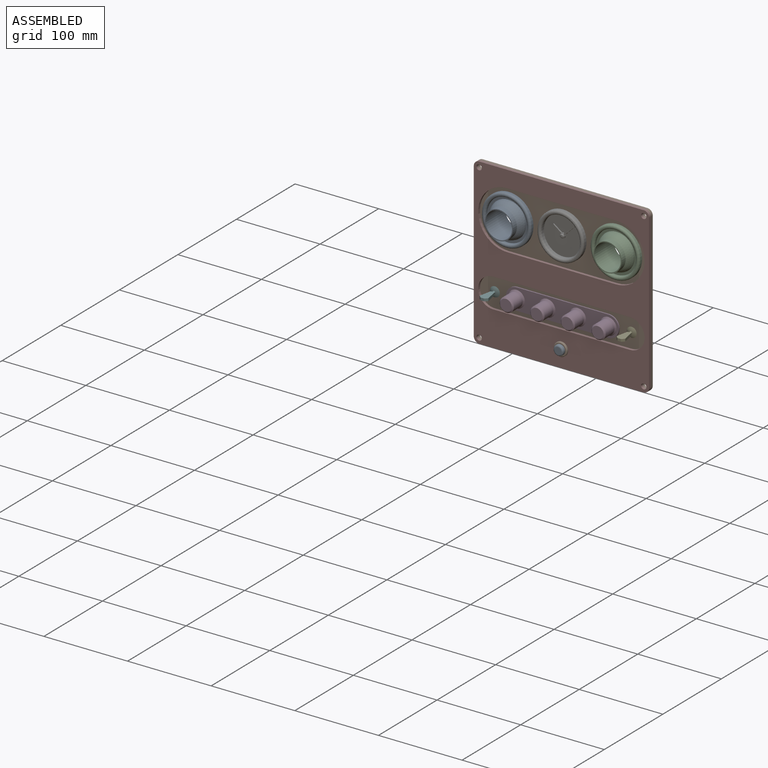
[diagram: assembled view]
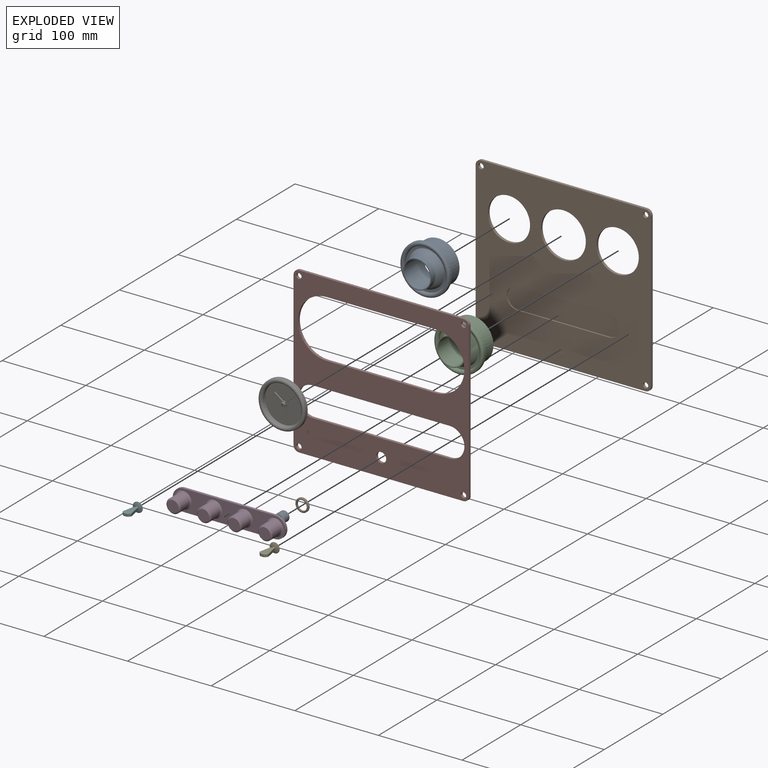
[diagram: exploded view]
GUIDED TOUR — MATED ASSEMBLY WITH SUBASSEMBLIES (Onshape document 7c3ce6815d3dd1184ce7540e, AutoMate assembly 7c3ce6815d3dd1184ce7540e_483a6e22841817b8dac2f705_e077e26f0af11b9b3541a5b8_default)

This assembly has 16 component occurrences arranged in 10 top-level units: 7 individual components plus 3 subassemblies (S0, S1, S2). The tour has two levels: first the top level, where each subassembly is treated as one rigid unit; then each subassembly is toured internally in its own section (nesting deeper than one subassembly level is flattened into its subassembly's section).

Components are labeled P0..P15 across the whole record; subassembly units are labeled S0..S2. A mate is a constraint between two units; its type names the relative motion it leaves free:
  BALL — leaves all rotation about the listed point free (a ball joint),
  FASTENED — locks the two components together rigidly (no relative motion).
Axis/direction vectors are unit vectors and 'through' points are millimeter coordinates, both in the assembly's world frame.

TOP-LEVEL MATES (between units; each subassembly's internal mates are listed in its own section)
  1. FASTENED "Fastened 1": P4 <-> P12, direction (0.000, 1.000, 0.000) through (-36.14, -2.82, -33.76) mm
  2. FASTENED "Fastened 6": S1 <-> P12, direction (0.000, 1.000, 0.000) through (28.86, -4.32, 49.34) mm
  3. FASTENED "Fastened 9": P10 <-> P12, direction (0.000, 1.000, 0.000) through (-134.57, -4.32, 97.52) mm
  4. FASTENED "Fastened 8": S2 <-> P12, direction (0.000, 1.000, 0.000) through (-36.14, -4.32, 49.34) mm
  5. FASTENED "Fastened 5": P8 <-> P12, direction (0.000, 1.000, 0.000) through (-117.94, -4.22, -33.76) mm
  6. FASTENED "Fastened 7": S0 <-> P12, direction (0.000, 1.000, 0.000) through (-101.14, -4.32, 49.34) mm
  7. FASTENED "Fastened 2": P1 <-> P10, direction (0.000, 1.000, 0.000) through (-36.14, -7.49, -72.26) mm
  8. FASTENED "Fastened 4": P7 <-> P12, direction (0.000, 1.000, 0.000) through (45.66, -4.22, -33.76) mm
  9. FASTENED "Fastened 3": P11 <-> P12, direction (0.000, 1.000, 0.000) through (-36.14, -4.22, -72.26) mm

TOP-LEVEL ASSEMBLY ORDER
  1. P12 — the base component [order heuristic]
  2. S0 — core [order heuristic]
  3. S1 — core [order heuristic]
  4. P10 [order verified]
  5. P4 [order verified]
  6. P1 [order verified]
  7. P11 [order verified]
  8. P8 [order verified]
  9. P7 [order verified]
  10. S2 [order verified]
Order-tag legend:
  [order verified] — this step's position reverses a verified removal order: the component was checked to insert without passing through the ones already placed.
  [order heuristic] — the first 3 components form the assembly's core: parts whose collision-free extraction could not be verified, listed in mate-graph order.

Of the 16 component occurrences, 15 carry the full construction recipe — the FeatureScript program that regenerates the part's solid from scratch; the rest are supplied as boundary geometry only. Each toured unit is shown spotlighted twice — assembled, then exploded with a leader line back to its socket (green = recipe-attached component, orange = geometry-only, blue = subassembly unit; the rest desaturated gray).
NOTE — this tour is split across 2 documents so each fits a 32k-token context. This is document 1: the component sections continue in the remaining 1 document, each repeating the header above.
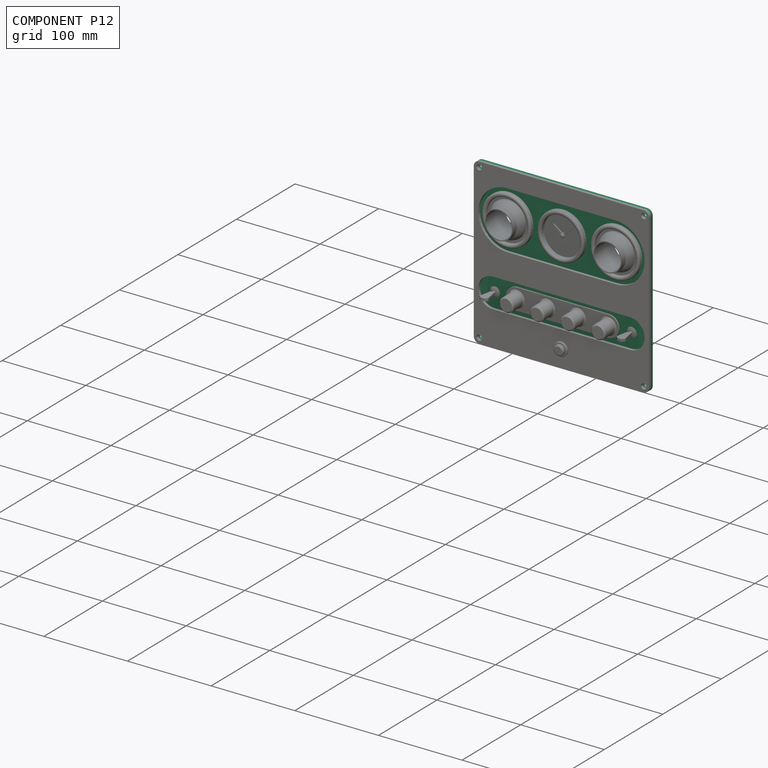
[diagram: component P12 — assembled]
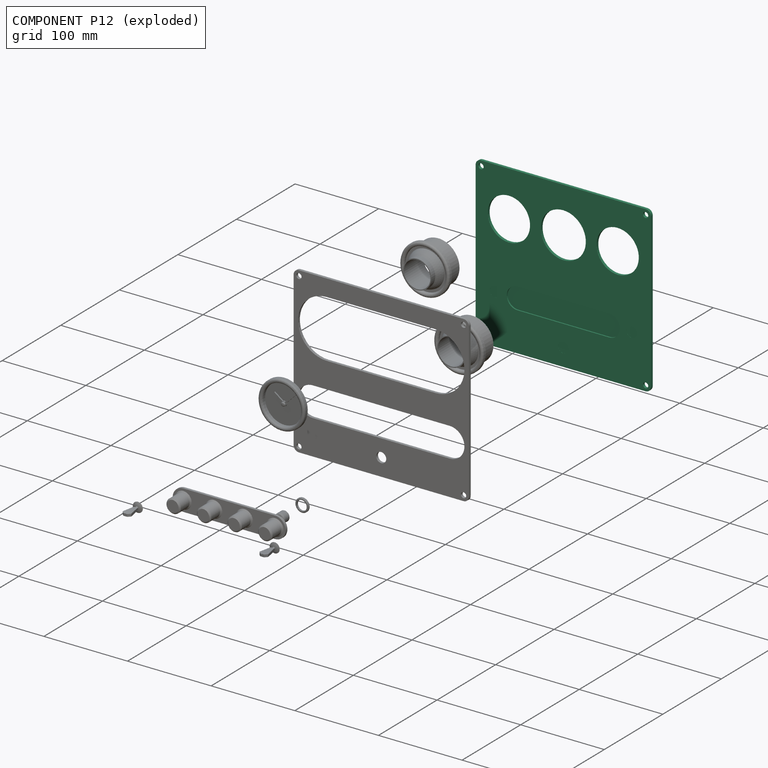
[diagram: component P12 — exploded]
COMPONENT P12 — recipe-attached (CADFS 00925162, mesh-verified: the recipe's output STEP matches this component's geometry to below the mesh-comparison resolution (tessellation chordal tolerance ~0.431 mm)).
Held by: FASTENED mate "Fastened 1" to P4; FASTENED mate "Fastened 6" to P2; FASTENED mate "Fastened 9" to P10; FASTENED mate "Fastened 8" to P9; FASTENED mate "Fastened 5" to P8; FASTENED mate "Fastened 7" to P0; FASTENED mate "Fastened 4" to P7; FASTENED mate "Fastened 3" to P11.
Construction recipe (FeatureScript — the CAD program that rebuilds this solid; sketch coordinates are in the units given by the * unit suffixes, e.g. mm):

FeatureScript 1540;
import(path : "onshape/std/geometry.fs", version : "1540.0");
import(path : "onshape/std/common.fs", version : "1540.0");
const mm = millimeter;
const VERTEX = EntityType.VERTEX;
const EDGE = EntityType.EDGE;
const FACE = EntityType.FACE;
const BODY = EntityType.BODY;
function v(x, y){return vector(x, y);}
function OD(order){return orderDisambiguation(order);}
function OSD(set){return originalSetDisambiguation(set);}
function TD(topology){return topologyDisambiguation(topology);}
function TDD(query){return trueDependencyDisambiguation(query);}
function sQuery(a, b, c) {return sketchEntityQuery(a, b, c);}

annotation { "Feature Type Name" : "Feature", "Feature Type Description" : "" }
export const myFeature = defineFeature(function(context is Context, id is Id, definition is map)
    precondition{}
    {
        {
            var Q0;
            Q0=qCreatedBy(makeId("Front.planeOp"),FACE);
            var sketch = newSketch(context, id + "F0", { "sketchPlane" : qUnion([Q0])});
            skLineSegment(sketch, "E0.bottom", {"start": v(-98.43, 98.42) * mm, "end": v(98.43, 98.43) * mm});
            skLineSegment(sketch, "E0.top", {"start": v(-98.43, -98.43) * mm, "end": v(98.43, -98.43) * mm});
            skLineSegment(sketch, "E0.left", {"start": v(-104.78, 92.08) * mm, "end": v(-104.78, -92.08) * mm});
            skLineSegment(sketch, "E0.right", {"start": v(104.78, 92.08) * mm, "end": v(104.78, -92.08) * mm});
            skPoint(sketch, "E1.visualSharp", {"position": v(-104.78, 98.42) * mm});
            skArc(sketch, "E1.filletArc", {"start": v(-98.43, 98.42) * mm, "mid": v(-102.92, 96.57) * mm, "end": v(-104.77, 92.08) * mm});
            skPoint(sketch, "E2.visualSharp", {"position": v(104.78, 98.43) * mm});
            skArc(sketch, "E2.filletArc", {"start": v(104.77, 92.08) * mm, "mid": v(102.92, 96.57) * mm, "end": v(98.43, 98.42) * mm});
            skPoint(sketch, "E3.visualSharp", {"position": v(104.78, -98.43) * mm});
            skArc(sketch, "E3.filletArc", {"start": v(98.43, -98.43) * mm, "mid": v(102.92, -96.57) * mm, "end": v(104.78, -92.08) * mm});
            skPoint(sketch, "E4.visualSharp", {"position": v(-104.78, -98.43) * mm});
            skArc(sketch, "E4.filletArc", {"start": v(-104.78, -92.08) * mm, "mid": v(-102.92, -96.57) * mm, "end": v(-98.43, -98.43) * mm});
            skSolve(sketch);
        }
        {
            var Q0;
            Q0=qSketchRegion(id+"F0",true);
            extrude(context, id + "F1", {"entities" : qUnion([Q0]), "depth" : 3.17 * mm, "offsetDistance" : 25.4 * mm});
        }
        {
            var Q0;
            Q0=makeQuery(id+"F1.opExtrude","CAP_FACE",FACE,{"disambiguationData":[OSD([sQuery(id+"F0.wireOp",EDGE,"E0.bottom"),sQuery(id+"F0.wireOp",EDGE,"E0.top"),sQuery(id+"F0.wireOp",EDGE,"E0.left"),sQuery(id+"F0.wireOp",EDGE,"E0.right"),sQuery(id+"F0.wireOp",EDGE,"E1.filletArc"),sQuery(id+"F0.wireOp",EDGE,"E2.filletArc"),sQuery(id+"F0.wireOp",EDGE,"E3.filletArc"),sQuery(id+"F0.wireOp",EDGE,"E4.filletArc")])],"isStart":false});
            var sketch = newSketch(context, id + "F2", { "sketchPlane" : qUnion([Q0])});
            skCircle(sketch, "E5", {"center": v(-98.43, 92.08) * mm, "radius": 3.18 * mm});
            skCircle(sketch, "E6", {"center": v(98.43, 92.08) * mm, "radius": 3.18 * mm});
            skCircle(sketch, "E7", {"center": v(98.43, -92.08) * mm, "radius": 3.18 * mm});
            skCircle(sketch, "E8", {"center": v(-98.43, -92.08) * mm, "radius": 3.18 * mm});
            skSolve(sketch);
        }
        {
            var Q0;
            Q0=qSketchRegion(id+"F2",true);
            extrude(context, id + "F3", {"entities" : qUnion([Q0]), "operationType" : NewBodyOperationType.REMOVE, "oppositeDirection" : true, "depth" : 25.4 * mm, "offsetDistance" : 25.4 * mm});
        }
        {
            var Q0;
            Q0=makeQuery(id+"F1.opExtrude","CAP_FACE",FACE,{"disambiguationData":[OSD([sQuery(id+"F0.wireOp",EDGE,"E0.bottom"),sQuery(id+"F0.wireOp",EDGE,"E0.top"),sQuery(id+"F0.wireOp",EDGE,"E0.left"),sQuery(id+"F0.wireOp",EDGE,"E0.right"),sQuery(id+"F0.wireOp",EDGE,"E1.filletArc"),sQuery(id+"F0.wireOp",EDGE,"E2.filletArc"),sQuery(id+"F0.wireOp",EDGE,"E3.filletArc"),sQuery(id+"F0.wireOp",EDGE,"E4.filletArc")])],"isStart":false});
            var sketch = newSketch(context, id + "F4", { "sketchPlane" : qUnion([Q0])});
            skLineSegment(sketch, "E9", {"start": v(118.93, 0) * mm, "end": v(-126.64, 0) * mm, "construction": true});
            skLineSegment(sketch, "E10", {"start": v(0, 104.43) * mm, "end": v(0, -104.38) * mm, "construction": true});
            skPoint(sketch, "E10.startSnap0", {"position": v(0, 98.43) * mm});
            skLineSegment(sketch, "E11.bottom", {"start": v(-54.84, -26.5) * mm, "end": v(54.84, -26.5) * mm});
            skLineSegment(sketch, "E11.top", {"start": v(-54.84, -51.9) * mm, "end": v(54.84, -51.9) * mm});
            skLineSegment(sketch, "E11.left", {"start": v(-67.54, -39.2) * mm, "end": v(-67.54, -39.2) * mm});
            skLineSegment(sketch, "E11.right", {"start": v(67.54, -39.2) * mm, "end": v(67.54, -39.2) * mm});
            skPoint(sketch, "E12.visualSharp", {"position": v(-67.54, -26.5) * mm});
            skArc(sketch, "E12.filletArc", {"start": v(-54.84, -26.5) * mm, "mid": v(-63.82, -30.22) * mm, "end": v(-67.54, -39.2) * mm});
            skPoint(sketch, "E13.visualSharp", {"position": v(-67.54, -51.9) * mm});
            skArc(sketch, "E13.filletArc", {"start": v(-67.54, -39.2) * mm, "mid": v(-63.82, -48.18) * mm, "end": v(-54.84, -51.9) * mm});
            skPoint(sketch, "E14.visualSharp", {"position": v(67.54, -26.5) * mm});
            skArc(sketch, "E14.filletArc", {"start": v(67.54, -39.2) * mm, "mid": v(63.82, -30.22) * mm, "end": v(54.84, -26.5) * mm});
            skPoint(sketch, "E15.visualSharp", {"position": v(67.54, -51.9) * mm});
            skArc(sketch, "E15.filletArc", {"start": v(54.84, -51.9) * mm, "mid": v(63.82, -48.18) * mm, "end": v(67.54, -39.2) * mm});
            skSolve(sketch);
        }
        {
            var Q0;
            Q0 = qSketchRegion(id + "F4", true);
            extrude(context, id + "F5", {"entities" : qUnion([Q0]), "operationType" : NewBodyOperationType.REMOVE, "oppositeDirection" : true, "depth" : 1.5 * mm, "offsetDistance" : 25 * mm});
        }
        {
            var Q0;
            Q0=makeQuery(id+"F1.opExtrude","CAP_FACE",FACE,{"disambiguationData":[OSD([sQuery(id+"F0.wireOp",EDGE,"E0.bottom"),sQuery(id+"F0.wireOp",EDGE,"E0.top"),sQuery(id+"F0.wireOp",EDGE,"E0.left"),sQuery(id+"F0.wireOp",EDGE,"E0.right"),sQuery(id+"F0.wireOp",EDGE,"E1.filletArc"),sQuery(id+"F0.wireOp",EDGE,"E2.filletArc"),sQuery(id+"F0.wireOp",EDGE,"E3.filletArc"),sQuery(id+"F0.wireOp",EDGE,"E4.filletArc")])],"isStart":false});
            var sketch = newSketch(context, id + "F6", { "sketchPlane" : qUnion([Q0])});
            skLineSegment(sketch, "E16", {"start": v(0, 0) * mm, "end": v(-63.9, 0) * mm, "construction": true});
            skLineSegment(sketch, "E17", {"start": v(0, 0) * mm, "end": v(0, 44.94) * mm, "construction": true});
            skCircle(sketch, "E18", {"center": v(-81.8, -39.2) * mm, "radius": 6 * mm});
            skCircle(sketch, "E19", {"center": v(0, -77.7) * mm, "radius": 6 * mm});
            skCircle(sketch, "E20.MirrorC", {"center": v(81.8, -39.2) * mm, "radius": 6 * mm});
            skSolve(sketch);
        }
        {
            var Q0;
            Q0 = qSketchRegion(id + "F6", true);
            extrude(context, id + "F7", {"entities" : qUnion([Q0]), "operationType" : NewBodyOperationType.REMOVE, "oppositeDirection" : true, "depth" : 0.1 * mm, "offsetDistance" : 25 * mm});
        }
        {
            var Q0;
            Q0=makeQuery(id+"F1.opExtrude","CAP_FACE",FACE,{"disambiguationData":[OSD([sQuery(id+"F0.wireOp",EDGE,"E0.bottom"),sQuery(id+"F0.wireOp",EDGE,"E0.top"),sQuery(id+"F0.wireOp",EDGE,"E0.left"),sQuery(id+"F0.wireOp",EDGE,"E0.right"),sQuery(id+"F0.wireOp",EDGE,"E1.filletArc"),sQuery(id+"F0.wireOp",EDGE,"E2.filletArc"),sQuery(id+"F0.wireOp",EDGE,"E3.filletArc"),sQuery(id+"F0.wireOp",EDGE,"E4.filletArc")])],"isStart":false});
            var sketch = newSketch(context, id + "F8", { "sketchPlane" : qUnion([Q0])});
            skCircle(sketch, "E21", {"center": v(-65, 43.9) * mm, "radius": 25.33 * mm});
            skLineSegment(sketch, "E22", {"start": v(0, 0) * mm, "end": v(0, 54.45) * mm, "construction": true});
            skPoint(sketch, "E22.endSnap0", {"position": v(0, -26.5) * mm});
            skCircle(sketch, "E23.MirrorC", {"center": v(65, 43.9) * mm, "radius": 25.33 * mm});
            skCircle(sketch, "E24", {"center": v(0, 43.9) * mm, "radius": 26.99 * mm});
            skSolve(sketch);
        }
        {
            var Q0;
            Q0 = qSketchRegion(id + "F8", true);
            extrude(context, id + "F9", {"entities" : qUnion([Q0]), "operationType" : NewBodyOperationType.REMOVE, "endBound" : BoundingType.THROUGH_ALL, "oppositeDirection" : true, "depth" : 25 * mm, "offsetDistance" : 25 * mm});
        }
    });
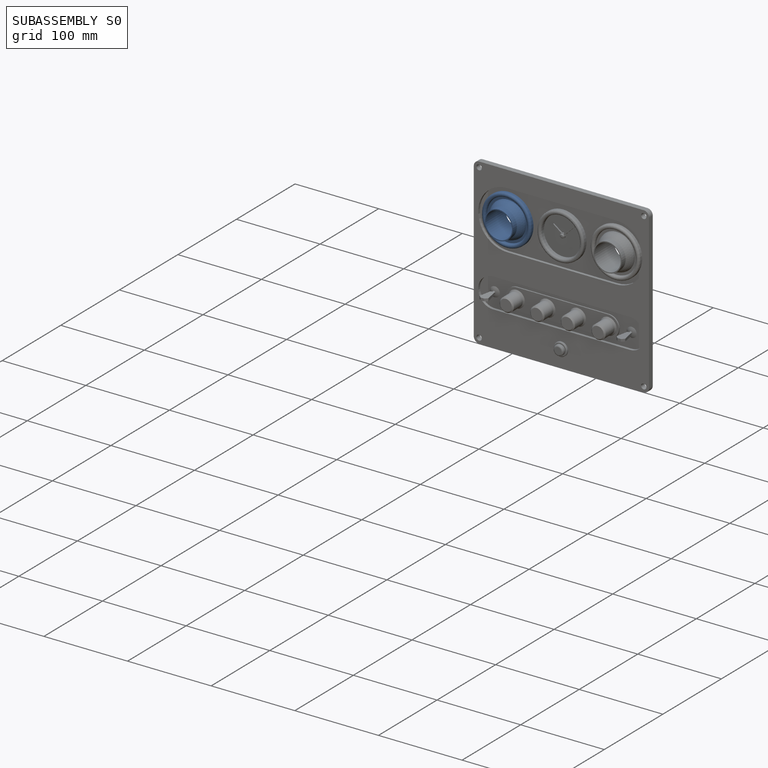
[diagram: subassembly S0 — assembled]
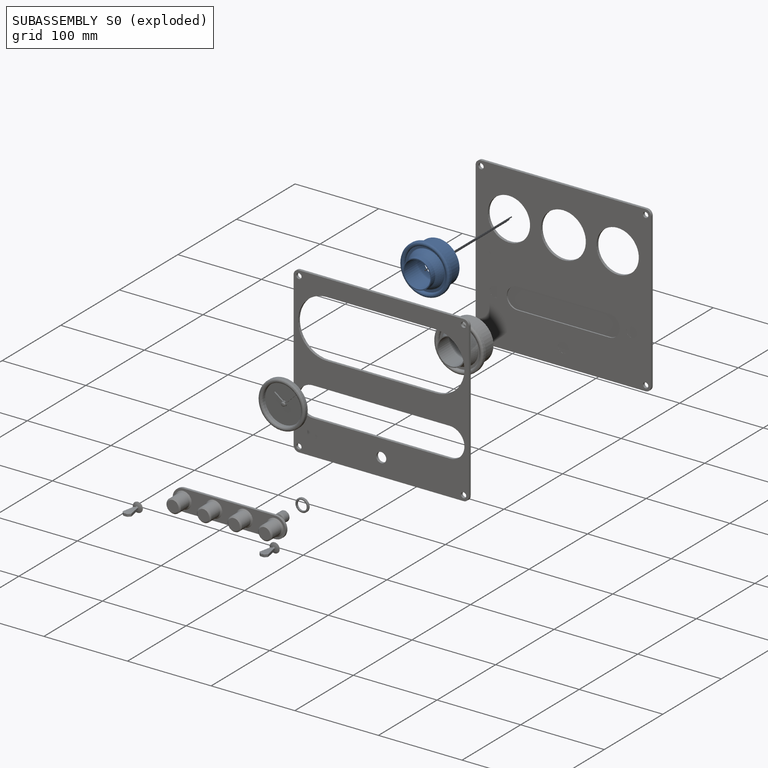
[diagram: subassembly S0 — exploded]
SUBASSEMBLY S0 — 3 components (P0, P5, P14), of which 3 recipe-attached; toured below.
Held by: FASTENED mate "Fastened 7" to P12.
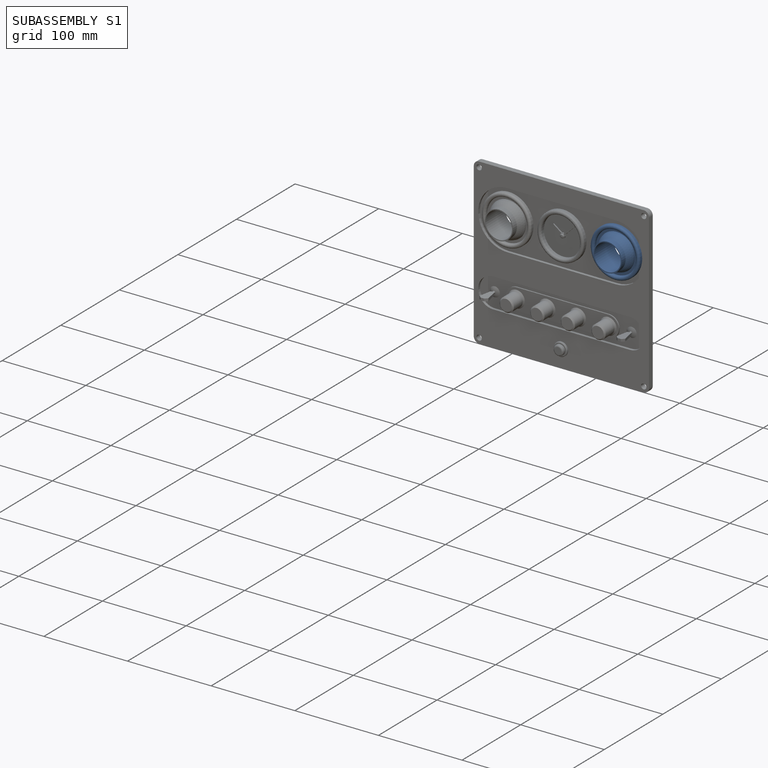
[diagram: subassembly S1 — assembled]
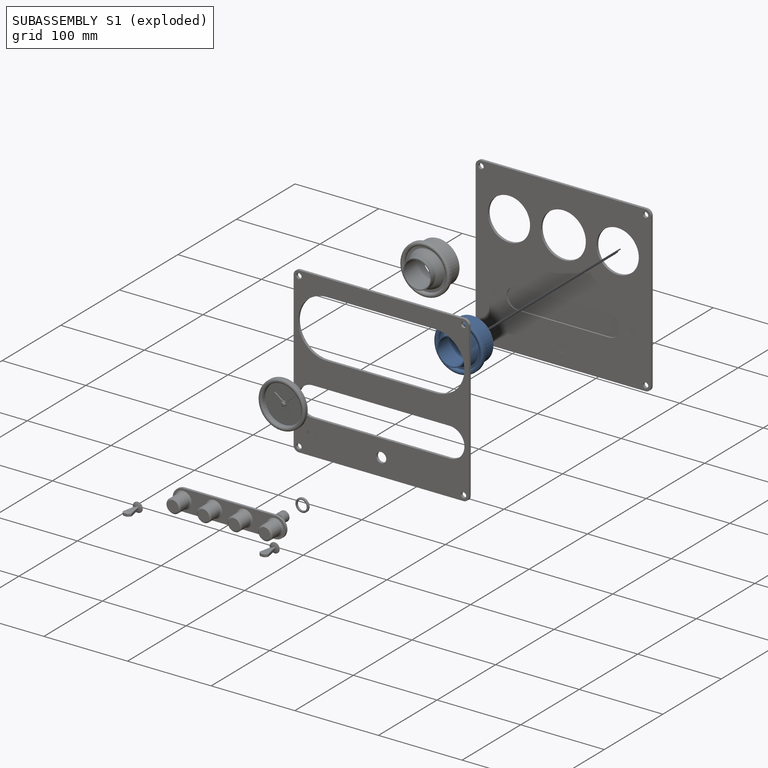
[diagram: subassembly S1 — exploded]
SUBASSEMBLY S1 — 3 components (P2, P3, P6), of which 3 recipe-attached; toured below.
Held by: FASTENED mate "Fastened 6" to P12.
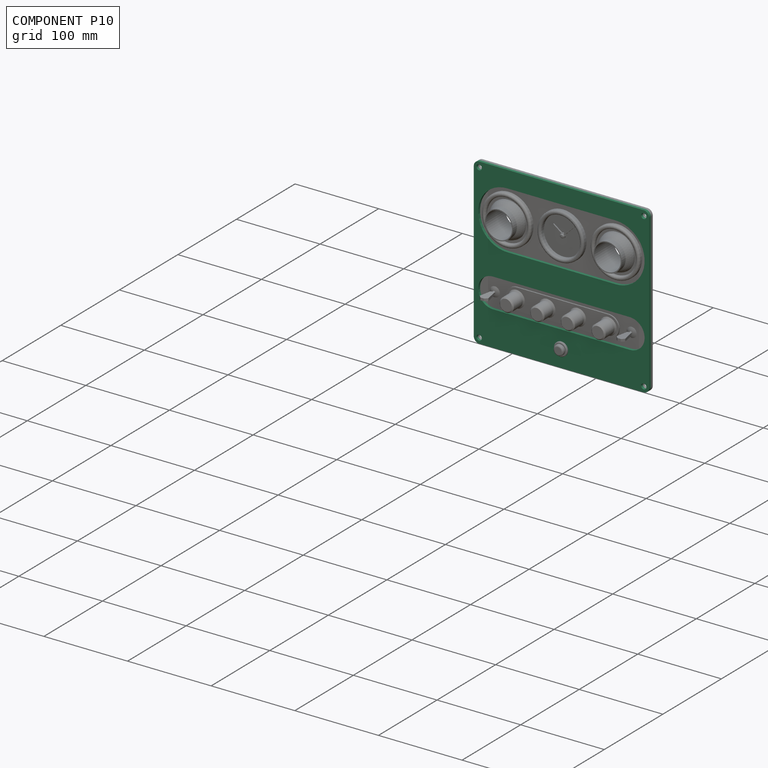
[diagram: component P10 — assembled]
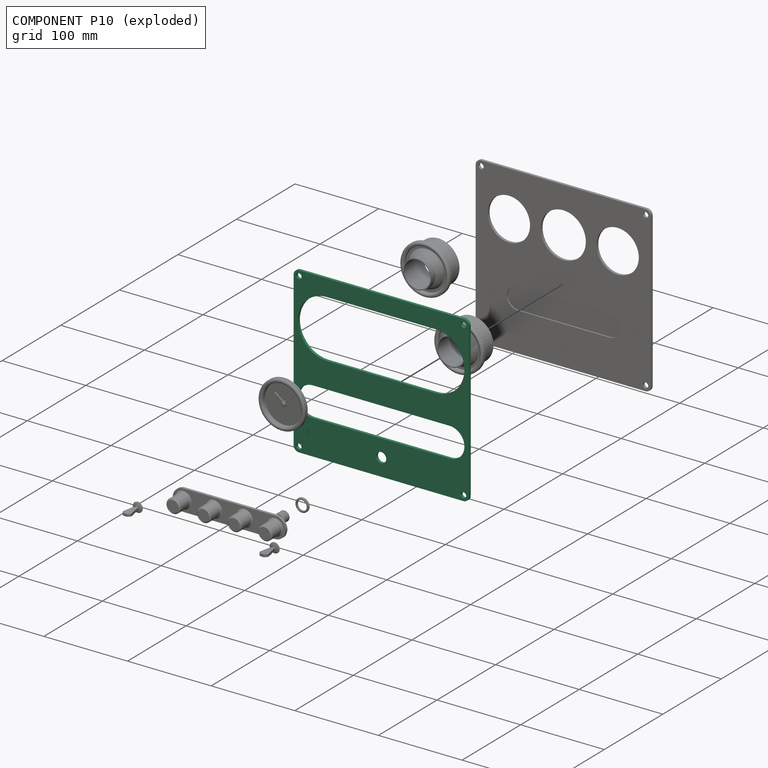
[diagram: component P10 — exploded]
COMPONENT P10 — recipe-attached (CADFS 00925161, mesh-verified: the recipe's output STEP matches this component's geometry to below the mesh-comparison resolution (tessellation chordal tolerance ~0.431 mm)).
Held by: FASTENED mate "Fastened 9" to P12; FASTENED mate "Fastened 2" to P1.
Construction recipe (FeatureScript — the CAD program that rebuilds this solid; sketch coordinates are in the units given by the * unit suffixes, e.g. mm):

FeatureScript 1540;
import(path : "onshape/std/geometry.fs", version : "1540.0");
import(path : "onshape/std/common.fs", version : "1540.0");
const mm = millimeter;
const VERTEX = EntityType.VERTEX;
const EDGE = EntityType.EDGE;
const FACE = EntityType.FACE;
const BODY = EntityType.BODY;
function v(x, y){return vector(x, y);}
function OD(order){return orderDisambiguation(order);}
function OSD(set){return originalSetDisambiguation(set);}
function TD(topology){return topologyDisambiguation(topology);}
function TDD(query){return trueDependencyDisambiguation(query);}
function sQuery(a, b, c) {return sketchEntityQuery(a, b, c);}

annotation { "Feature Type Name" : "Feature", "Feature Type Description" : "" }
export const myFeature = defineFeature(function(context is Context, id is Id, definition is map)
    precondition{}
    {
        {
            var Q0;
            Q0=qCreatedBy(makeId("Front.planeOp"),FACE);
            var sketch = newSketch(context, id + "F0", { "sketchPlane" : qUnion([Q0])});
            skLineSegment(sketch, "E0.bottom", {"start": v(-98.43, 98.42) * mm, "end": v(98.43, 98.43) * mm});
            skLineSegment(sketch, "E0.top", {"start": v(-98.43, -98.43) * mm, "end": v(98.43, -98.43) * mm});
            skLineSegment(sketch, "E0.left", {"start": v(-104.78, 92.08) * mm, "end": v(-104.78, -92.08) * mm});
            skLineSegment(sketch, "E0.right", {"start": v(104.78, 92.08) * mm, "end": v(104.78, -92.08) * mm});
            skPoint(sketch, "E1.visualSharp", {"position": v(-104.78, 98.42) * mm});
            skArc(sketch, "E1.filletArc", {"start": v(-98.43, 98.42) * mm, "mid": v(-102.92, 96.57) * mm, "end": v(-104.77, 92.08) * mm});
            skPoint(sketch, "E2.visualSharp", {"position": v(104.78, 98.43) * mm});
            skArc(sketch, "E2.filletArc", {"start": v(104.77, 92.08) * mm, "mid": v(102.92, 96.57) * mm, "end": v(98.43, 98.42) * mm});
            skPoint(sketch, "E3.visualSharp", {"position": v(104.78, -98.43) * mm});
            skArc(sketch, "E3.filletArc", {"start": v(98.43, -98.43) * mm, "mid": v(102.92, -96.57) * mm, "end": v(104.78, -92.08) * mm});
            skPoint(sketch, "E4.visualSharp", {"position": v(-104.78, -98.43) * mm});
            skArc(sketch, "E4.filletArc", {"start": v(-104.78, -92.08) * mm, "mid": v(-102.92, -96.57) * mm, "end": v(-98.43, -98.43) * mm});
            skSolve(sketch);
        }
        {
            var Q0;
            Q0=qSketchRegion(id+"F0",true);
            extrude(context, id + "F1", {"entities" : qUnion([Q0]), "depth" : 3.17 * mm, "offsetDistance" : 25.4 * mm});
        }
        {
            var Q0;
            Q0=makeQuery(id+"F1.opExtrude","CAP_FACE",FACE,{"disambiguationData":[OSD([sQuery(id+"F0.wireOp",EDGE,"E0.bottom"),sQuery(id+"F0.wireOp",EDGE,"E0.top"),sQuery(id+"F0.wireOp",EDGE,"E0.left"),sQuery(id+"F0.wireOp",EDGE,"E0.right"),sQuery(id+"F0.wireOp",EDGE,"E1.filletArc"),sQuery(id+"F0.wireOp",EDGE,"E2.filletArc"),sQuery(id+"F0.wireOp",EDGE,"E3.filletArc"),sQuery(id+"F0.wireOp",EDGE,"E4.filletArc")])],"isStart":false});
            var sketch = newSketch(context, id + "F2", { "sketchPlane" : qUnion([Q0])});
            skCircle(sketch, "E5", {"center": v(-98.42, 92.08) * mm, "radius": 3.18 * mm});
            skCircle(sketch, "E6", {"center": v(98.42, 92.08) * mm, "radius": 3.18 * mm});
            skCircle(sketch, "E7", {"center": v(98.43, -92.08) * mm, "radius": 3.18 * mm});
            skCircle(sketch, "E8", {"center": v(-98.42, -92.08) * mm, "radius": 3.18 * mm});
            skSolve(sketch);
        }
        {
            var Q0;
            Q0=qSketchRegion(id+"F2",true);
            extrude(context, id + "F3", {"entities" : qUnion([Q0]), "operationType" : NewBodyOperationType.REMOVE, "oppositeDirection" : true, "depth" : 25.4 * mm, "offsetDistance" : 25.4 * mm});
        }
        {
            var Q0;
            Q0=makeQuery(id+"F1.opExtrude","CAP_FACE",FACE,{"disambiguationData":[OSD([sQuery(id+"F0.wireOp",EDGE,"E0.bottom"),sQuery(id+"F0.wireOp",EDGE,"E0.top"),sQuery(id+"F0.wireOp",EDGE,"E0.left"),sQuery(id+"F0.wireOp",EDGE,"E0.right"),sQuery(id+"F0.wireOp",EDGE,"E1.filletArc"),sQuery(id+"F0.wireOp",EDGE,"E2.filletArc"),sQuery(id+"F0.wireOp",EDGE,"E3.filletArc"),sQuery(id+"F0.wireOp",EDGE,"E4.filletArc")])],"isStart":false});
            var sketch = newSketch(context, id + "F4", { "sketchPlane" : qUnion([Q0])});
            skLineSegment(sketch, "E9", {"start": v(-104.78, 0) * mm, "end": v(-65, 0) * mm, "construction": true});
            skLineSegment(sketch, "E10", {"start": v(0, 98.43) * mm, "end": v(0, -98.43) * mm, "construction": true});
            skLineSegment(sketch, "E11.0", {"start": v(-119.48, 43.9) * mm, "end": v(90.07, 43.9) * mm, "construction": true});
            skLineSegment(sketch, "E12.0", {"start": v(-65, 9.4) * mm, "end": v(65, 9.4) * mm});
            skLineSegment(sketch, "E13.0", {"start": v(-65, 78.4) * mm, "end": v(65, 78.4) * mm});
            skLineSegment(sketch, "E14.0", {"start": v(-65, 101.21) * mm, "end": v(-65, 0) * mm, "construction": true});
            skArc(sketch, "E15", {"start": v(-65, 78.4) * mm, "mid": v(-99.5, 43.9) * mm, "end": v(-65, 9.4) * mm});
            skArc(sketch, "E16.MirrorCS", {"start": v(65, 78.4) * mm, "mid": v(99.5, 43.9) * mm, "end": v(65, 9.4) * mm});
            skLineSegment(sketch, "E17.MirrorCS", {"start": v(65, 101.21) * mm, "end": v(65, 0) * mm, "construction": true});
            skLineSegment(sketch, "E18.0", {"start": v(-104.78, -39.2) * mm, "end": v(104.78, -39.2) * mm, "construction": true});
            skLineSegment(sketch, "E19.0", {"start": v(-81.8, -56.9) * mm, "end": v(81.8, -56.9) * mm});
            skLineSegment(sketch, "E20.trimOffspring", {"start": v(0, 0) * mm, "end": v(104.78, 0) * mm, "construction": true});
            skPoint(sketch, "E21.trimOffspring.end.orphan", {"position": v(-65, -95.64) * mm});
            skPoint(sketch, "E22.trimOffspring.end.orphan", {"position": v(65, -95.64) * mm});
            skLineSegment(sketch, "E23.MirrorCS", {"start": v(-81.8, -21.5) * mm, "end": v(81.8, -21.5) * mm});
            skLineSegment(sketch, "E24.0", {"start": v(-81.8, 98.43) * mm, "end": v(-81.8, -98.43) * mm, "construction": true});
            skArc(sketch, "E25", {"start": v(-81.8, -21.5) * mm, "mid": v(-99.5, -39.2) * mm, "end": v(-81.8, -56.9) * mm});
            skPoint(sketch, "E25.startSnap0", {"position": v(-81.8, 0) * mm});
            skPoint(sketch, "E26.orphan", {"position": v(-104.78, -56.9) * mm});
            skPoint(sketch, "E27.orphan", {"position": v(-104.78, -21.5) * mm});
            skArc(sketch, "E28.MirrorCS", {"start": v(81.8, -21.5) * mm, "mid": v(99.5, -39.2) * mm, "end": v(81.8, -56.9) * mm});
            skPoint(sketch, "E29.orphan", {"position": v(104.78, -56.9) * mm});
            skPoint(sketch, "E30.orphan", {"position": v(104.78, -21.5) * mm});
            skLineSegment(sketch, "E31.0", {"start": v(61.6, 98.43) * mm, "end": v(61.6, -98.43) * mm, "construction": true});
            skPoint(sketch, "E32.orphan", {"position": v(104.78, -52.3) * mm});
            skPoint(sketch, "E33.orphan", {"position": v(104.78, -74.3) * mm});
            skPoint(sketch, "E34.MirrorCS.end.orphan", {"position": v(61.6, -74.3) * mm});
            skPoint(sketch, "E34.MirrorCS.start.orphan", {"position": v(0, -74.3) * mm});
            skPoint(sketch, "E35.0.start.orphan", {"position": v(0, -52.3) * mm});
            skPoint(sketch, "E36.start.orphan", {"position": v(61.6, -52.3) * mm});
            skPoint(sketch, "E37.orphan", {"position": v(-61.6, -74.3) * mm});
            skPoint(sketch, "E38.MirrorCS.end.orphan", {"position": v(-61.6, -52.3) * mm});
            skSolve(sketch);
        }
        {
            var Q0;
            Q0 = qSketchRegion(id + "F4", true);
            extrude(context, id + "F5", {"entities" : qUnion([Q0]), "operationType" : NewBodyOperationType.REMOVE, "oppositeDirection" : true, "depth" : 25 * mm, "offsetDistance" : 25 * mm});
        }
        {
            var Q0;
            Q0 = qSketchRegion(id + "F4", true);
            extrude(context, id + "F6", {"entities" : qUnion([Q0]), "operationType" : NewBodyOperationType.REMOVE, "oppositeDirection" : true, "depth" : 25 * mm, "offsetDistance" : 25 * mm});
        }
        {
            var Q0;
            Q0 = qSketchRegion(id + "F4", true);
            extrude(context, id + "F7", {"entities" : qUnion([Q0]), "operationType" : NewBodyOperationType.REMOVE, "oppositeDirection" : true, "depth" : 25 * mm, "offsetDistance" : 25 * mm});
        }
        {
            var Q0;
            Q0=makeQuery(id+"F1.opExtrude","CAP_FACE",FACE,{"disambiguationData":[OSD([sQuery(id+"F0.wireOp",EDGE,"E0.bottom"),sQuery(id+"F0.wireOp",EDGE,"E0.top"),sQuery(id+"F0.wireOp",EDGE,"E0.left"),sQuery(id+"F0.wireOp",EDGE,"E0.right"),sQuery(id+"F0.wireOp",EDGE,"E1.filletArc"),sQuery(id+"F0.wireOp",EDGE,"E2.filletArc"),sQuery(id+"F0.wireOp",EDGE,"E3.filletArc"),sQuery(id+"F0.wireOp",EDGE,"E4.filletArc")])],"isStart":false});
            var sketch = newSketch(context, id + "F8", { "sketchPlane" : qUnion([Q0])});
            skCircle(sketch, "E39", {"center": v(0, -77.7) * mm, "radius": 6 * mm});
            skSolve(sketch);
        }
        {
            var Q0;
            Q0 = qSketchRegion(id + "F8", true);
            extrude(context, id + "F9", {"entities" : qUnion([Q0]), "operationType" : NewBodyOperationType.REMOVE, "oppositeDirection" : true, "depth" : 25 * mm, "offsetDistance" : 25 * mm});
        }
    });
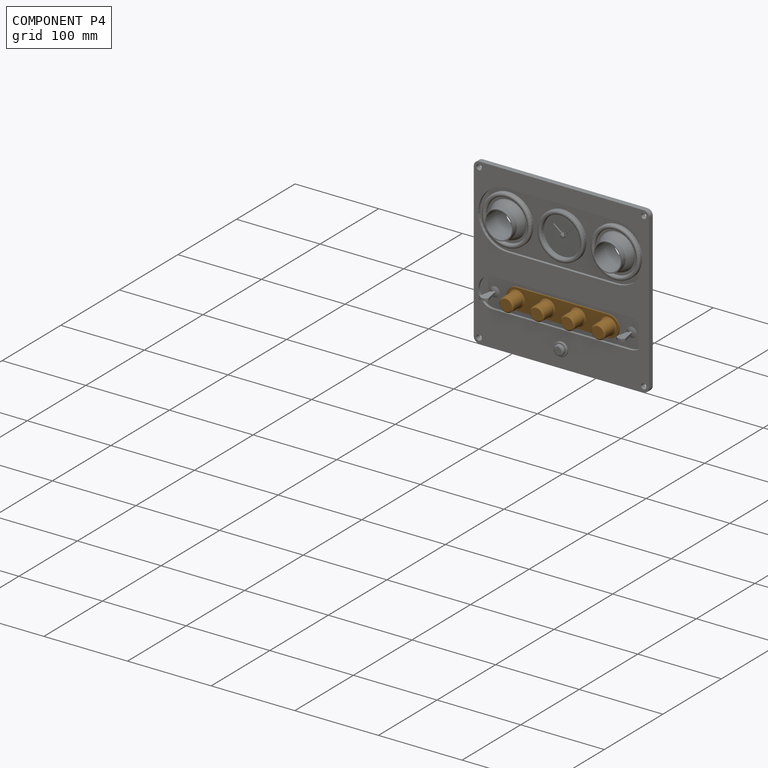
[diagram: component P4 — assembled]
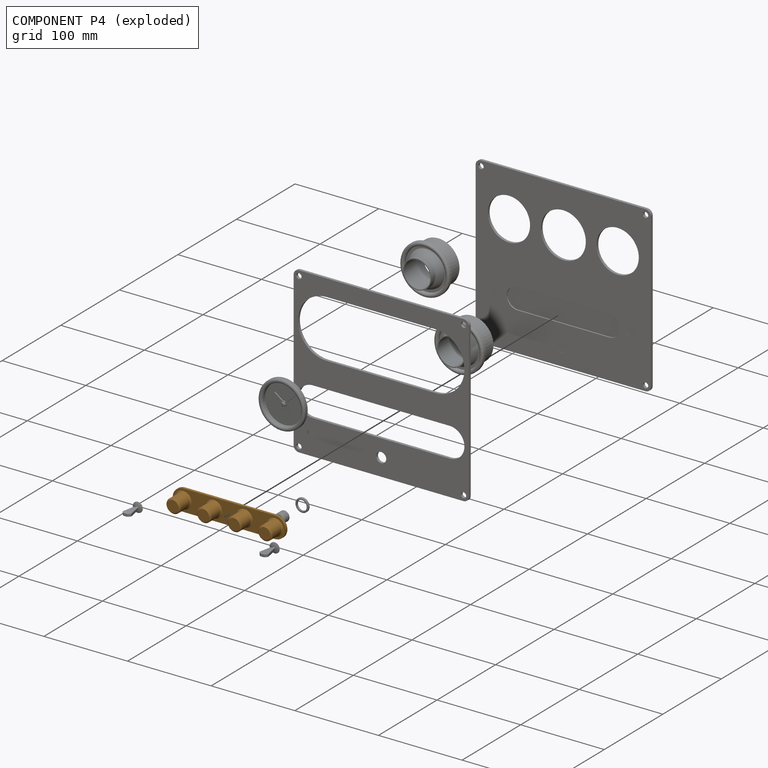
[diagram: component P4 — exploded]
COMPONENT P4 — geometry summary (no construction recipe available for this part):
  bounding box: 135.1 x 25.4 x 21.0 mm
  B-rep topology: 1 solid, 22 faces, 80 edges
  volume: 26249 mm^3 (36% of its bounding box)
  symmetry: 2-fold rotationally symmetric about the y axis; mirror-symmetric across its x mid-plane, z mid-plane
Held by: FASTENED mate "Fastened 1" to P12.
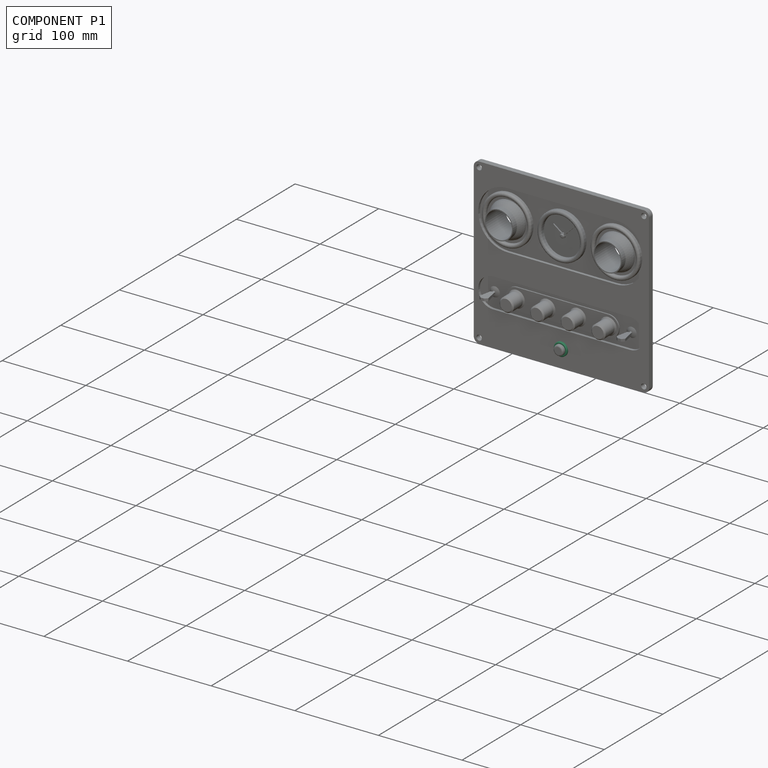
[diagram: component P1 — assembled]
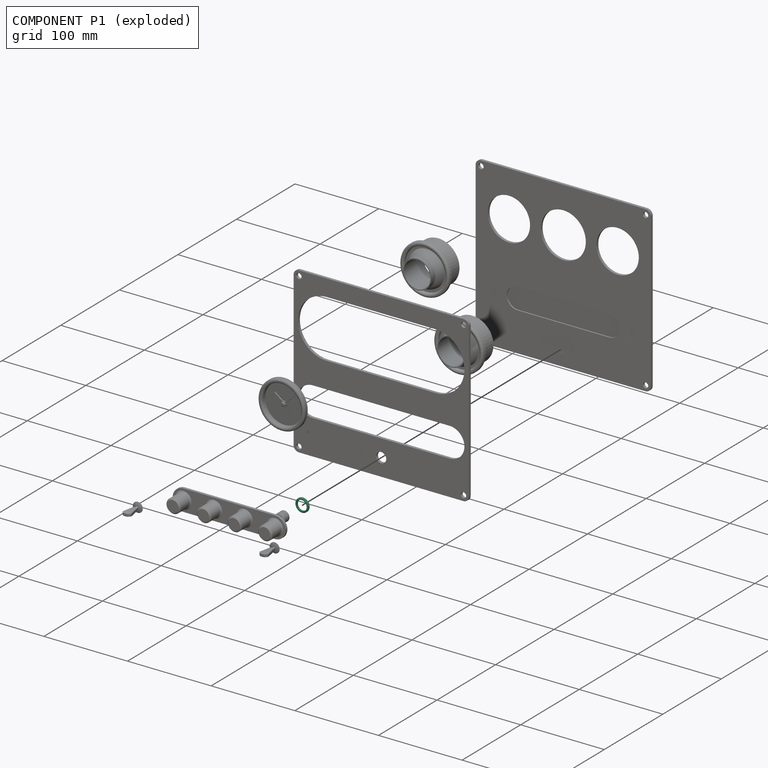
[diagram: component P1 — exploded]
COMPONENT P1 — recipe-attached (CADFS 00925170, mesh-verified: the recipe's output STEP matches this component's geometry to below the mesh-comparison resolution (tessellation chordal tolerance ~0.0341 mm)).
Held by: FASTENED mate "Fastened 2" to P10.
Construction recipe (FeatureScript — the CAD program that rebuilds this solid; sketch coordinates are in the units given by the * unit suffixes, e.g. mm):

FeatureScript 1540;
import(path : "onshape/std/geometry.fs", version : "1540.0");
import(path : "onshape/std/common.fs", version : "1540.0");
const mm = millimeter;
const VERTEX = EntityType.VERTEX;
const EDGE = EntityType.EDGE;
const FACE = EntityType.FACE;
const BODY = EntityType.BODY;
function v(x, y){return vector(x, y);}
function OD(order){return orderDisambiguation(order);}
function OSD(set){return originalSetDisambiguation(set);}
function TD(topology){return topologyDisambiguation(topology);}
function TDD(query){return trueDependencyDisambiguation(query);}
function sQuery(a, b, c) {return sketchEntityQuery(a, b, c);}

annotation { "Feature Type Name" : "Feature", "Feature Type Description" : "" }
export const myFeature = defineFeature(function(context is Context, id is Id, definition is map)
    precondition{}
    {
        {
            var Q0;
            Q0=qCreatedBy(makeId("Front.planeOp"),FACE);
            var sketch = newSketch(context, id + "F0", { "sketchPlane" : qUnion([Q0])});
            skCircle(sketch, "E0", {"center": v(0, 0) * mm, "radius": 6 * mm});
            skCircle(sketch, "E1", {"center": v(0, 0) * mm, "radius": 8 * mm});
            skSolve(sketch);
        }
        {
            var Q0;
            Q0 = qSketchRegion(id + "F0", true);
            extrude(context, id + "F1", {"entities" : qUnion([Q0]), "depth" : 2.2 * mm, "offsetDistance" : 25 * mm});
        }
        {
            var Q0;
            Q0=makeQuery(id+"F1.opExtrude","CAP_EDGE",EDGE,{"disambiguationData":[OSD([sQuery(id+"F0.wireOp",EDGE,"E1")])],"isStart":false});
            chamfer(context, id + "F2", {"entities" : qUnion([Q0]), "width" : .75 * mm, "tangentPropagation" : true});
        }
    });
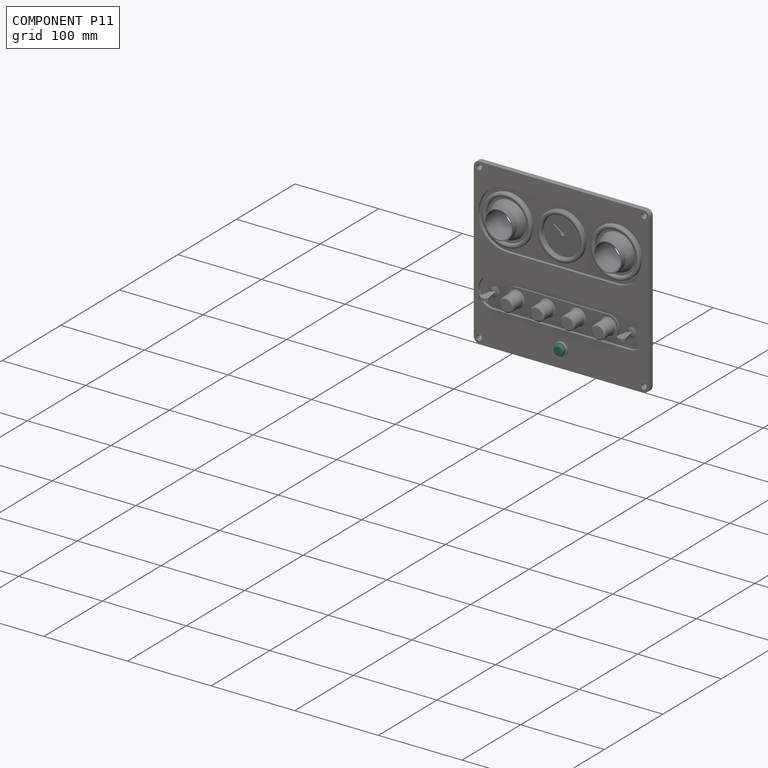
[diagram: component P11 — assembled]
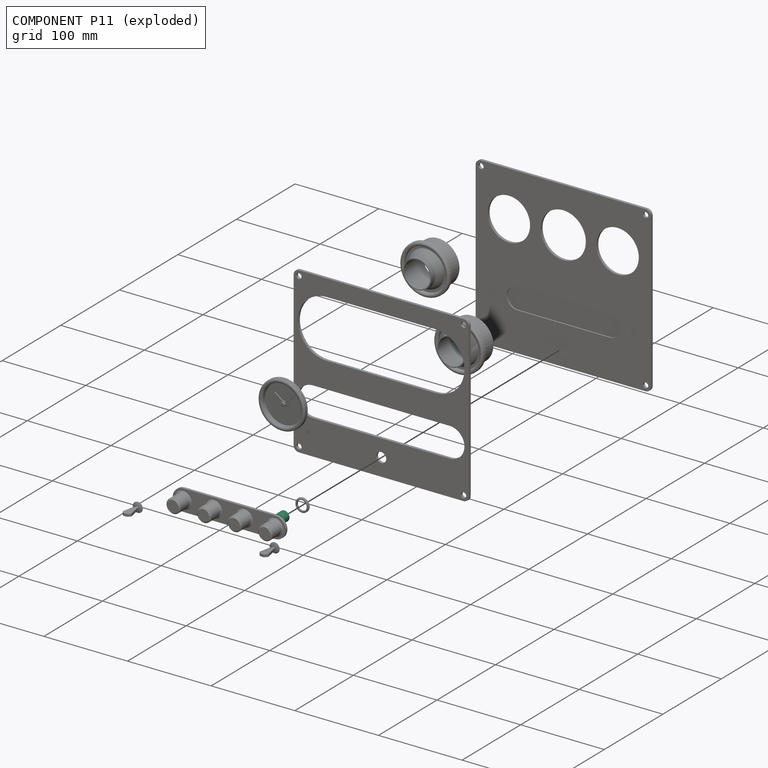
[diagram: component P11 — exploded]
COMPONENT P11 — recipe-attached (CADFS 00925169, mesh-verified: the recipe's output STEP matches this component's geometry to below the mesh-comparison resolution (tessellation chordal tolerance ~0.0289 mm)).
Held by: FASTENED mate "Fastened 3" to P12.
Construction recipe (FeatureScript — the CAD program that rebuilds this solid; sketch coordinates are in the units given by the * unit suffixes, e.g. mm):

FeatureScript 1540;
import(path : "onshape/std/geometry.fs", version : "1540.0");
import(path : "onshape/std/common.fs", version : "1540.0");
const mm = millimeter;
const VERTEX = EntityType.VERTEX;
const EDGE = EntityType.EDGE;
const FACE = EntityType.FACE;
const BODY = EntityType.BODY;
function v(x, y){return vector(x, y);}
function OD(order){return orderDisambiguation(order);}
function OSD(set){return originalSetDisambiguation(set);}
function TD(topology){return topologyDisambiguation(topology);}
function TDD(query){return trueDependencyDisambiguation(query);}
function sQuery(a, b, c) {return sketchEntityQuery(a, b, c);}

annotation { "Feature Type Name" : "Feature", "Feature Type Description" : "" }
export const myFeature = defineFeature(function(context is Context, id is Id, definition is map)
    precondition{}
    {
        {
            var Q0;
            Q0=qCreatedBy(makeId("Front.planeOp"),FACE);
            var sketch = newSketch(context, id + "F0", { "sketchPlane" : qUnion([Q0])});
            skCircle(sketch, "E0", {"center": v(0, 0) * mm, "radius": 6 * mm});
            skSolve(sketch);
        }
        {
            var Q0;
            Q0 = qSketchRegion(id + "F0", true);
            extrude(context, id + "F1", {"entities" : qUnion([Q0]), "depth" : 9.18 * mm, "offsetDistance" : 25 * mm});
        }
        {
            var Q0;
            Q0=makeQuery(id+"F1.opExtrude","CAP_EDGE",EDGE,{"disambiguationData":[OSD([sQuery(id+"F0.wireOp",EDGE,"E0")])],"isStart":false});
            fillet(context, id + "F2", {"entities" : qUnion([Q0]), "radius" : 2 * mm, "tangentPropagation" : true, "allowEdgeOverflow" : false});
        }
    });
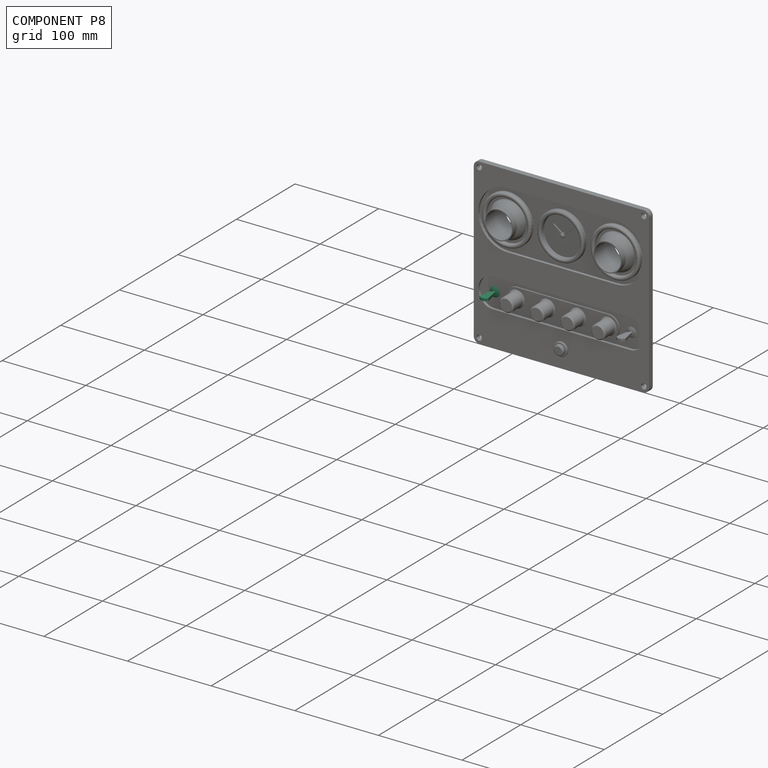
[diagram: component P8 — assembled]
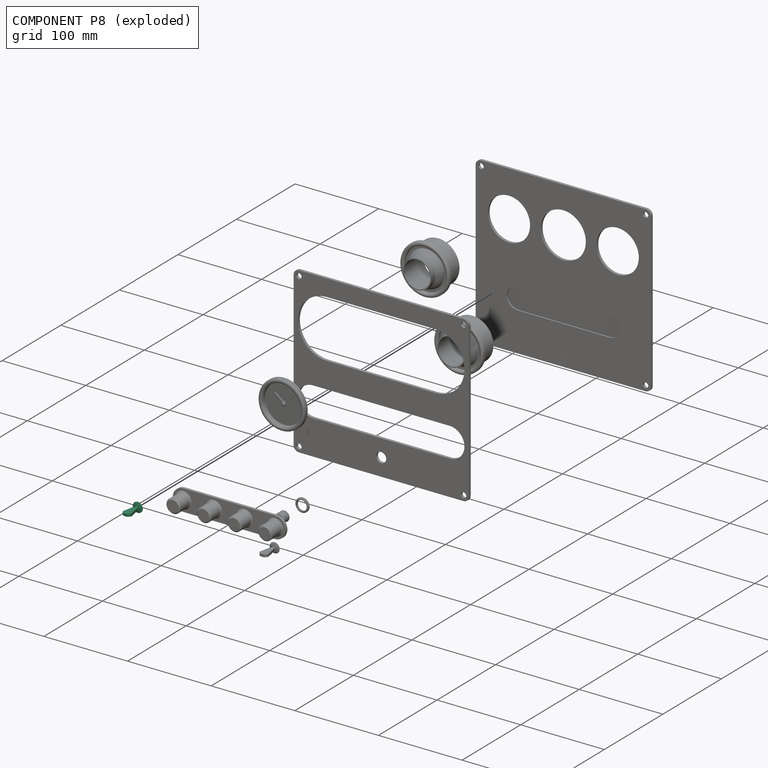
[diagram: component P8 — exploded]
COMPONENT P8 — same part as P7 (CADFS 00925171); its construction recipe is shown at P7.
Held by: FASTENED mate "Fastened 5" to P12.
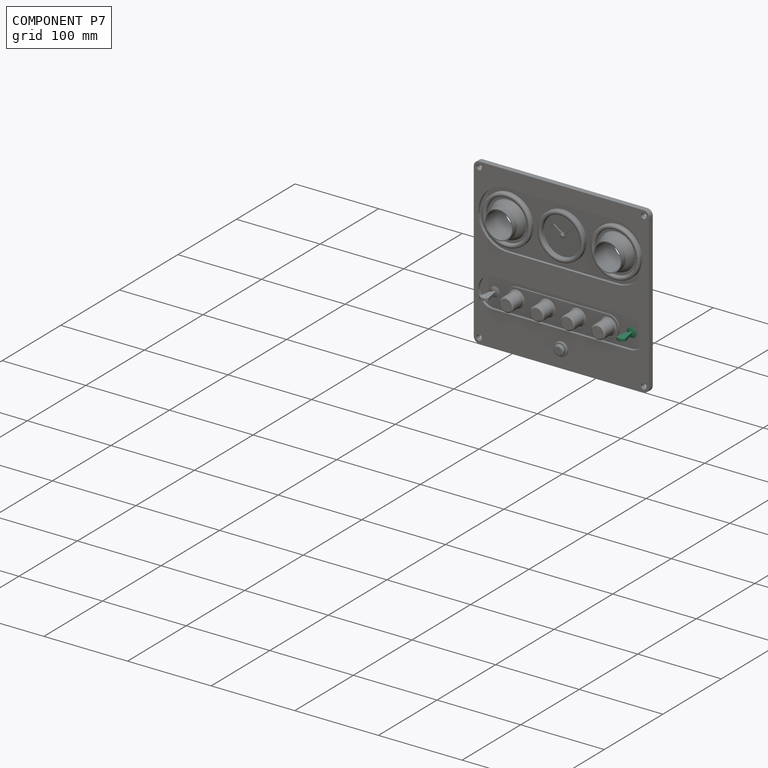
[diagram: component P7 — assembled]
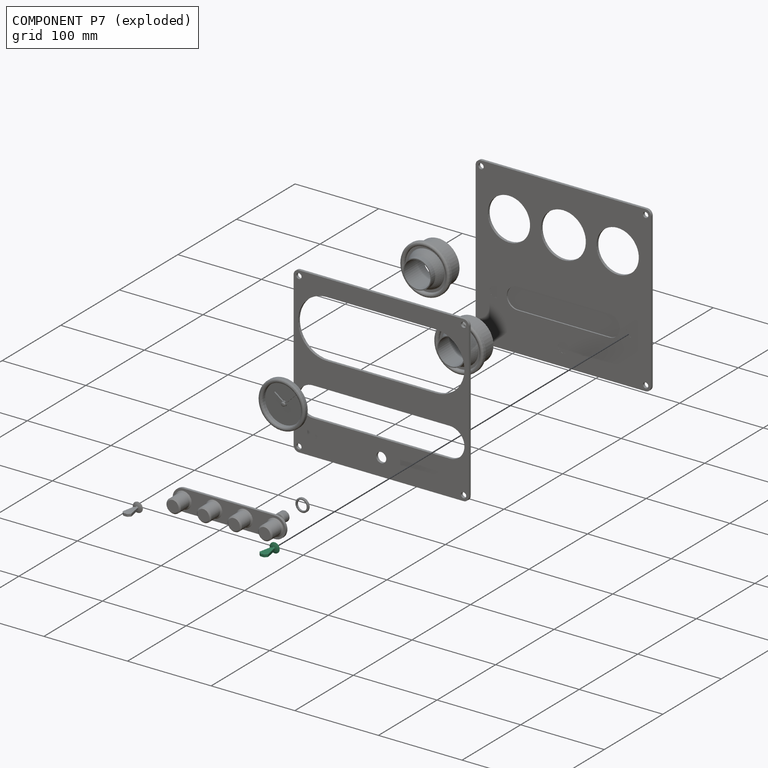
[diagram: component P7 — exploded]
COMPONENT P7 — recipe-attached (CADFS 00925171, mesh-verified: the recipe's output STEP matches this component's geometry to below the mesh-comparison resolution (tessellation chordal tolerance ~0.0411 mm)).
Held by: FASTENED mate "Fastened 4" to P12.
Construction recipe (FeatureScript — the CAD program that rebuilds this solid; sketch coordinates are in the units given by the * unit suffixes, e.g. mm):

FeatureScript 1540;
import(path : "onshape/std/geometry.fs", version : "1540.0");
import(path : "onshape/std/common.fs", version : "1540.0");
const mm = millimeter;
const VERTEX = EntityType.VERTEX;
const EDGE = EntityType.EDGE;
const FACE = EntityType.FACE;
const BODY = EntityType.BODY;
function v(x, y){return vector(x, y);}
function OD(order){return orderDisambiguation(order);}
function OSD(set){return originalSetDisambiguation(set);}
function TD(topology){return topologyDisambiguation(topology);}
function TDD(query){return trueDependencyDisambiguation(query);}
function sQuery(a, b, c) {return sketchEntityQuery(a, b, c);}

annotation { "Feature Type Name" : "Feature", "Feature Type Description" : "" }
export const myFeature = defineFeature(function(context is Context, id is Id, definition is map)
    precondition{}
    {
        {
            var Q0;
            Q0=qCreatedBy(makeId("Right.planeOp"),FACE);
            var sketch = newSketch(context, id + "F0", { "sketchPlane" : qUnion([Q0])});
            skLineSegment(sketch, "E0", {"start": v(0, 6) * mm, "end": v(0, 0) * mm});
            skArc(sketch, "E1", {"start": v(0, 6) * mm, "mid": v(-1.12, 3.1) * mm, "end": v(-1.5, 0) * mm});
            skLineSegment(sketch, "E2", {"start": v(-17.4, 0) * mm, "end": v(19.26, 0) * mm, "construction": true});
            skLineSegment(sketch, "E3", {"start": v(-1.5, 0) * mm, "end": v(0, 0) * mm});
            skPoint(sketch, "E4.orphan", {"position": v(0, -6) * mm});
            skSolve(sketch);
        }
        {
            var Q0;
            Q0 = qSketchRegion(id + "F0", true);
            var Q1;
            Q1=sQuery(id+"F0.wireOp",EDGE,"E2");
            revolve(context, id + "F1", {"surfaceOperationType" : NewSurfaceOperationType.NEW, "entities" : qUnion([Q0]), "axis" : qUnion([Q1]), "revolveType" : RevolveType.FULL});
        }
        {
            var Q0;
            Q0=qCreatedBy(makeId("Front.planeOp"),FACE);
            var sketch = newSketch(context, id + "F2", { "sketchPlane" : qUnion([Q0])});
            skCircle(sketch, "E5", {"center": v(0, 0) * mm, "radius": 1.5 * mm});
            skSolve(sketch);
        }
        {
            var Q0;
            Q0 = qSketchRegion(id + "F2", true);
            extrude(context, id + "F3", {"entities" : qUnion([Q0]), "operationType" : NewBodyOperationType.ADD, "depth" : 4 * mm, "offsetDistance" : 25 * mm});
        }
        {
            var Q0;
            Q0=qCreatedBy(makeId("Top.planeOp"),FACE);
            var sketch = newSketch(context, id + "F4", { "sketchPlane" : qUnion([Q0])});
            skLineSegment(sketch, "E6", {"start": v(0, -3.87) * mm, "end": v(-1.47, -3.87) * mm});
            skLineSegment(sketch, "E7", {"start": v(-2.45, -4.67) * mm, "end": v(-5.07, -18.03) * mm});
            skLineSegment(sketch, "E8", {"start": v(-4.8, -18.91) * mm, "end": v(-2.59, -21.21) * mm});
            skLineSegment(sketch, "E9", {"start": v(-1.87, -21.52) * mm, "end": v(0, -21.52) * mm});
            skLineSegment(sketch, "E10", {"start": v(0, -27.33) * mm, "end": v(0, 13.26) * mm, "construction": true});
            skPoint(sketch, "E11.visualSharp", {"position": v(-5.17, -18.54) * mm});
            skArc(sketch, "E11.filletArc", {"start": v(-5.07, -18.03) * mm, "mid": v(-5.05, -18.5) * mm, "end": v(-4.8, -18.91) * mm});
            skPoint(sketch, "E12.visualSharp", {"position": v(-2.3, -21.52) * mm});
            skArc(sketch, "E12.filletArc", {"start": v(-2.59, -21.21) * mm, "mid": v(-2.26, -21.44) * mm, "end": v(-1.87, -21.52) * mm});
            skPoint(sketch, "E13.visualSharp", {"position": v(-2.3, -3.87) * mm});
            skArc(sketch, "E13.filletArc", {"start": v(-1.47, -3.87) * mm, "mid": v(-2.1, -4.1) * mm, "end": v(-2.45, -4.67) * mm});
            skArc(sketch, "E14.MirrorCS", {"start": v(5.07, -18.03) * mm, "mid": v(5.05, -18.5) * mm, "end": v(4.8, -18.91) * mm});
            skArc(sketch, "E15.MirrorCS", {"start": v(2.59, -21.21) * mm, "mid": v(2.26, -21.44) * mm, "end": v(1.87, -21.52) * mm});
            skArc(sketch, "E16.MirrorCS", {"start": v(1.47, -3.87) * mm, "mid": v(2.1, -4.1) * mm, "end": v(2.45, -4.67) * mm});
            skPoint(sketch, "E17.MirrorP", {"position": v(2.3, -3.87) * mm});
            skPoint(sketch, "E18.MirrorP", {"position": v(2.3, -21.52) * mm});
            skLineSegment(sketch, "E19.MirrorCS", {"start": v(0, -3.87) * mm, "end": v(1.47, -3.87) * mm});
            skLineSegment(sketch, "E20.MirrorCS", {"start": v(1.87, -21.52) * mm, "end": v(0, -21.52) * mm});
            skLineSegment(sketch, "E21.MirrorCS", {"start": v(4.8, -18.91) * mm, "end": v(2.59, -21.21) * mm});
            skLineSegment(sketch, "E22.MirrorCS", {"start": v(2.45, -4.67) * mm, "end": v(5.07, -18.03) * mm});
            skPoint(sketch, "E23.MirrorP", {"position": v(5.17, -18.54) * mm});
            skSolve(sketch);
        }
        {
            var Q0;
            Q0 = qSketchRegion(id + "F4", true);
            extrude(context, id + "F5", {"entities" : qUnion([Q0]), "operationType" : NewBodyOperationType.ADD, "depth" : 3 * mm, "offsetDistance" : 25 * mm, "symmetric" : true});
        }
    });
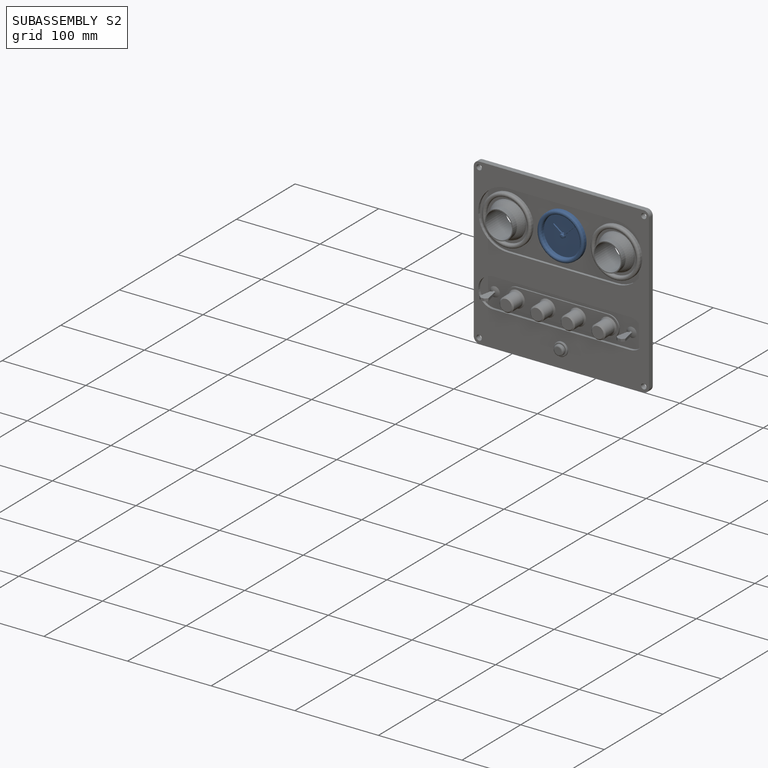
[diagram: subassembly S2 — assembled]
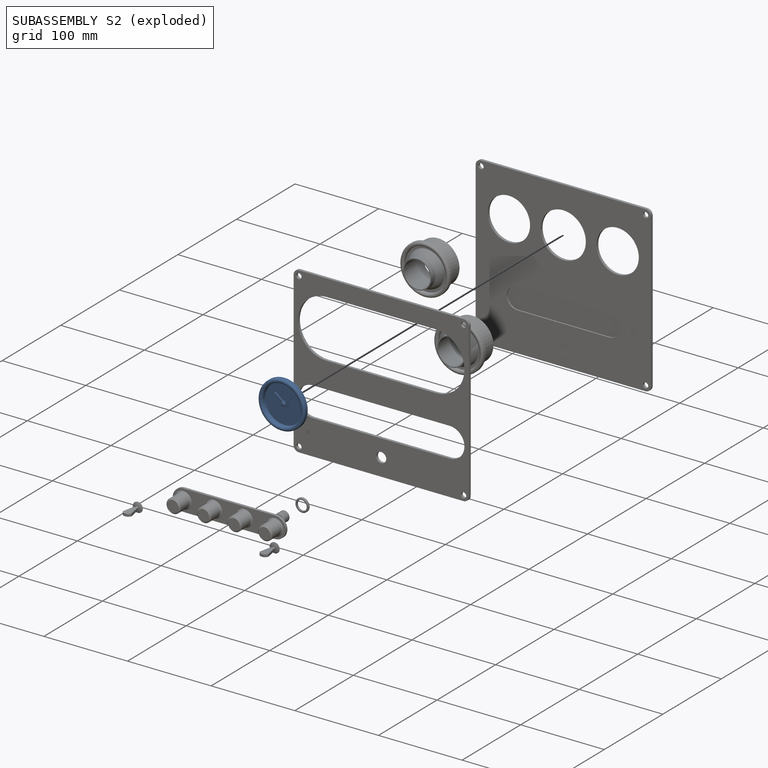
[diagram: subassembly S2 — exploded]
SUBASSEMBLY S2 — 3 components (P9, P13, P15), of which 3 recipe-attached; toured below.
Held by: FASTENED mate "Fastened 8" to P12.
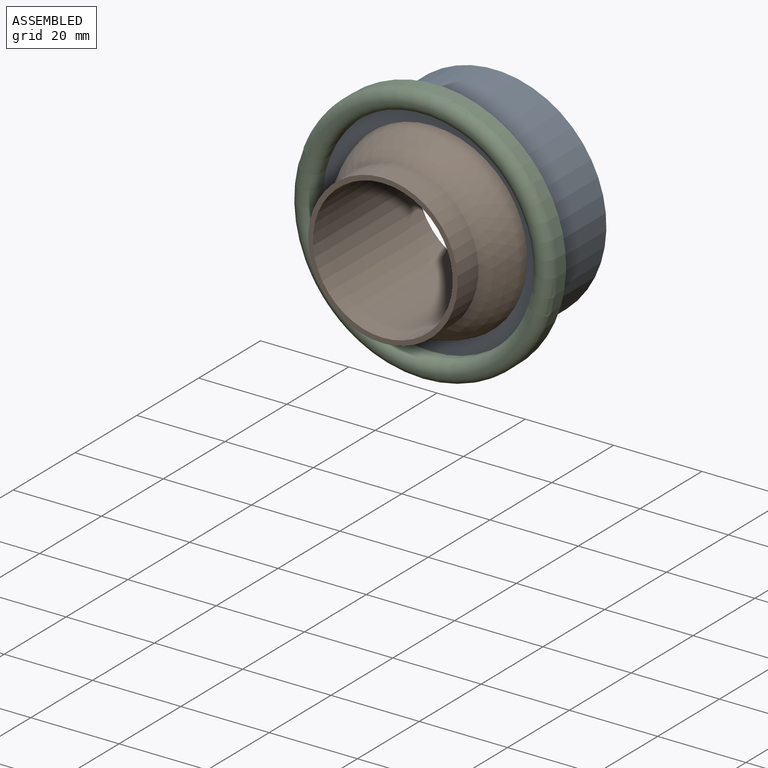
[diagram: subassembly S0 — assembled view]
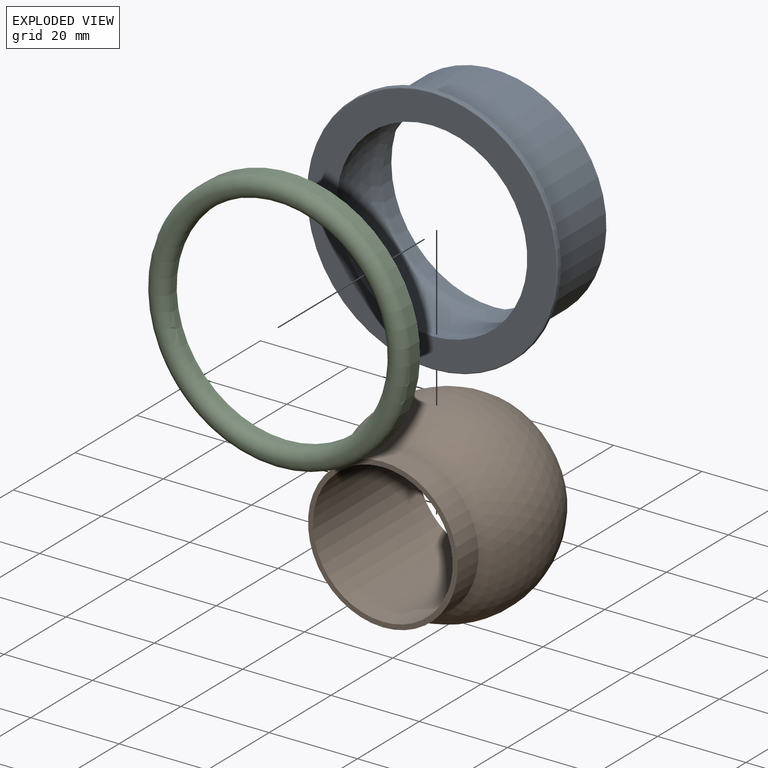
[diagram: subassembly S0 — exploded view]
SUBASSEMBLY S0 TOUR — 3 components, shown here in isolation at its own camera.

INTERNAL MATES
  1. BALL "Ball 1": P0 <-> P5, direction (0.000, 0.000, 1.000) through (-101.14, -0.56, 49.34) mm
  2. FASTENED "Fastened 1": P14 <-> P0, direction (0.000, 1.000, 0.000) through (-101.14, -5.67, 49.34) mm
  3. FASTENED "Fastened 1": P14 <-> P0, direction (0.000, 1.000, 0.000) through (-101.14, -5.67, 49.34) mm
  4. BALL "Ball 1": P0 <-> P5, direction (0.000, 0.000, 1.000) through (-101.14, -0.56, 49.34) mm

ASSEMBLY ORDER (within the subassembly)
  1. P0 — the base component [order heuristic]
  2. P5 — core [order heuristic]
  3. P14 [order verified]
(P14 verified with a relaxed clearance tolerance: the source model stores slight part interference there.)
Order-tag legend:
  [order verified] — this step's position reverses a verified removal order: the component was checked to insert without passing through the ones already placed.
  [order heuristic] — the first 2 components form the assembly's core: parts whose collision-free extraction could not be verified, listed in mate-graph order.
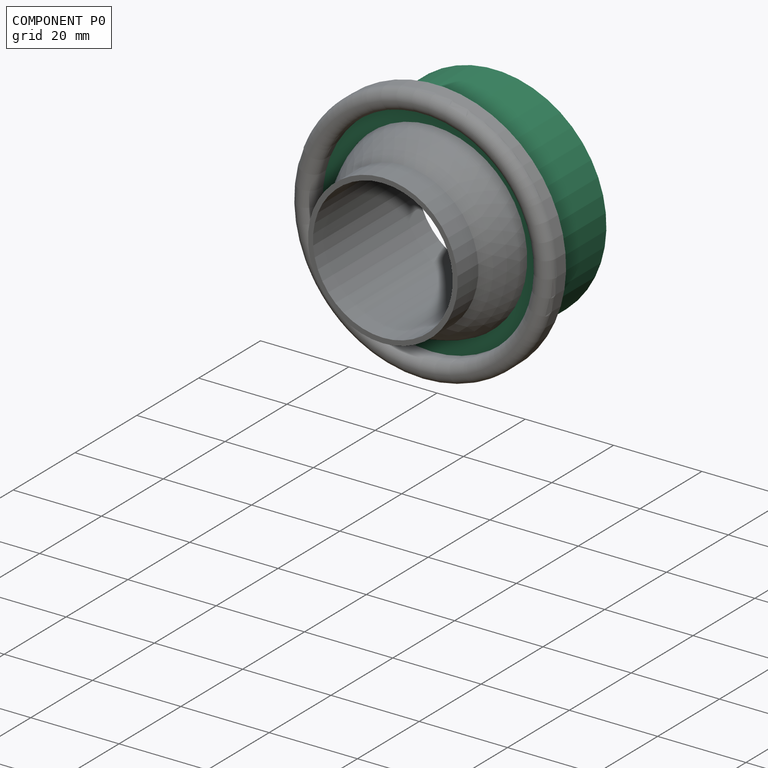
[diagram: component P0 — assembled]
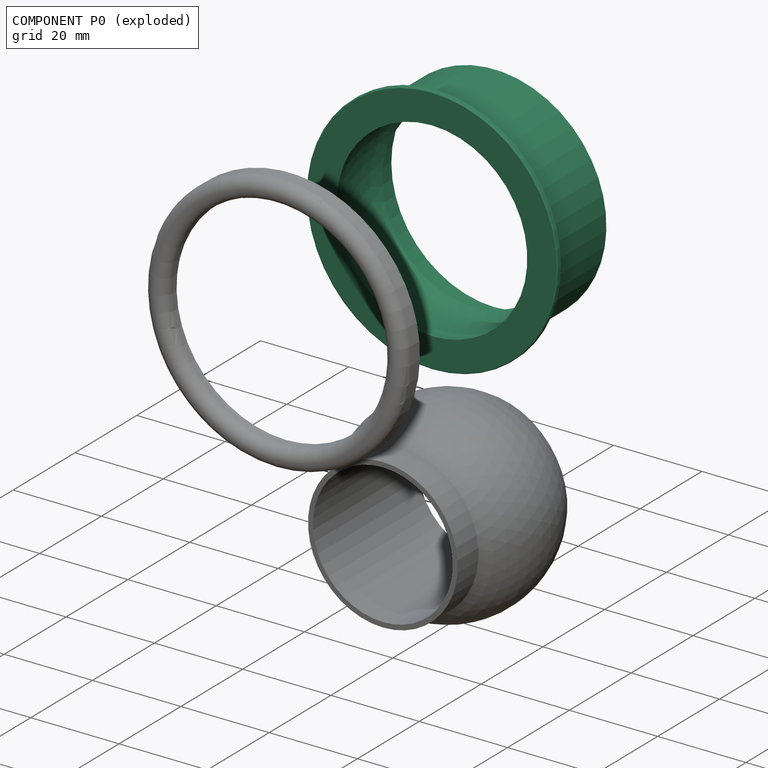
[diagram: component P0 — exploded]
COMPONENT P0 — recipe-attached (CADFS 00925168, mesh-verified: the recipe's output STEP matches this component's geometry to below the mesh-comparison resolution (tessellation chordal tolerance ~0.124 mm)).
Held by: BALL mate "Ball 1" to P5; FASTENED mate "Fastened 1" to P14; FASTENED mate "Fastened 1" to P14; BALL mate "Ball 1" to P5.
Construction recipe (FeatureScript — the CAD program that rebuilds this solid; sketch coordinates are in the units given by the * unit suffixes, e.g. mm):

FeatureScript 1540;
import(path : "onshape/std/geometry.fs", version : "1540.0");
import(path : "onshape/std/common.fs", version : "1540.0");
const mm = millimeter;
const VERTEX = EntityType.VERTEX;
const EDGE = EntityType.EDGE;
const FACE = EntityType.FACE;
const BODY = EntityType.BODY;
function v(x, y){return vector(x, y);}
function OD(order){return orderDisambiguation(order);}
function OSD(set){return originalSetDisambiguation(set);}
function TD(topology){return topologyDisambiguation(topology);}
function TDD(query){return trueDependencyDisambiguation(query);}
function sQuery(a, b, c) {return sketchEntityQuery(a, b, c);}

annotation { "Feature Type Name" : "Feature", "Feature Type Description" : "" }
export const myFeature = defineFeature(function(context is Context, id is Id, definition is map)
    precondition{}
    {
        {
            var Q0;
            Q0=qCreatedBy(makeId("Right.planeOp"),FACE);
            var sketch = newSketch(context, id + "F0", { "sketchPlane" : qUnion([Q0])});
            skArc(sketch, "E0", {"start": v(-5.1, 21.58) * mm, "mid": v(1.62, 22.12) * mm, "end": v(8.2, 20.61) * mm});
            skLineSegment(sketch, "E1", {"start": v(-5.11, 21.58) * mm, "end": v(-5.11, 28.15) * mm});
            skLineSegment(sketch, "E2", {"start": v(-4.81, 28.45) * mm, "end": v(-4.06, 28.45) * mm});
            skLineSegment(sketch, "E3", {"start": v(-3.76, 28.15) * mm, "end": v(-3.76, 25.63) * mm});
            skLineSegment(sketch, "E4", {"start": v(-3.46, 25.33) * mm, "end": v(15.13, 25.33) * mm});
            skLineSegment(sketch, "E5", {"start": v(15.13, 25.33) * mm, "end": v(15.13, 23.4) * mm});
            skLineSegment(sketch, "E6", {"start": v(15.13, 23.4) * mm, "end": v(8.5, 23.4) * mm});
            skLineSegment(sketch, "E7", {"start": v(8.2, 23.09) * mm, "end": v(8.2, 20.61) * mm});
            skPoint(sketch, "E8.visualSharp", {"position": v(-5.11, 28.45) * mm});
            skArc(sketch, "E8.filletArc", {"start": v(-4.81, 28.45) * mm, "mid": v(-5.02, 28.36) * mm, "end": v(-5.11, 28.15) * mm});
            skPoint(sketch, "E9.visualSharp", {"position": v(-3.76, 28.45) * mm});
            skArc(sketch, "E9.filletArc", {"start": v(-3.76, 28.15) * mm, "mid": v(-3.85, 28.36) * mm, "end": v(-4.06, 28.45) * mm});
            skPoint(sketch, "E10.visualSharp", {"position": v(-3.76, 25.33) * mm});
            skArc(sketch, "E10.filletArc", {"start": v(-3.76, 25.63) * mm, "mid": v(-3.67, 25.42) * mm, "end": v(-3.46, 25.33) * mm});
            skPoint(sketch, "E11.visualSharp", {"position": v(8.2, 23.4) * mm});
            skArc(sketch, "E11.filletArc", {"start": v(8.5, 23.4) * mm, "mid": v(8.28, 23.3) * mm, "end": v(8.2, 23.09) * mm});
            skPoint(sketch, "E12.orphan", {"position": v(-22.18, 0) * mm});
            skPoint(sketch, "E13.orphan", {"position": v(22.18, 0) * mm});
            skLineSegment(sketch, "E14", {"start": v(-51.15, 0) * mm, "end": v(58.37, 0) * mm, "construction": true});
            skSolve(sketch);
        }
        {
            var Q0;
            Q0 = qSketchRegion(id + "F0", true);
            var Q1;
            Q1=sQuery(id+"F0.wireOp",EDGE,"E14");
            revolve(context, id + "F1", {"surfaceOperationType" : NewSurfaceOperationType.NEW, "entities" : qUnion([Q0]), "axis" : qUnion([Q1]), "revolveType" : RevolveType.FULL});
        }
    });
